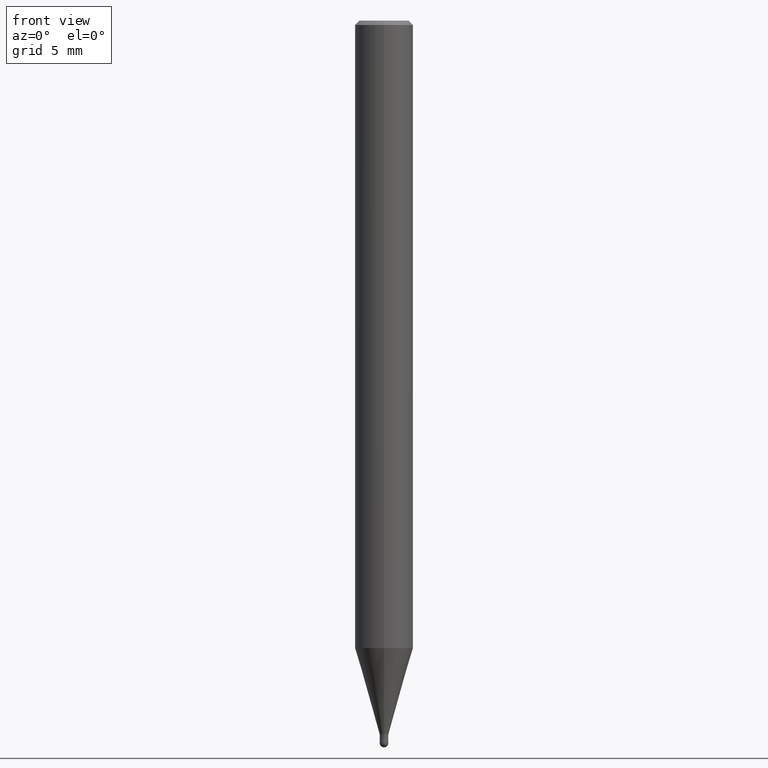
[diagram: clean part render]
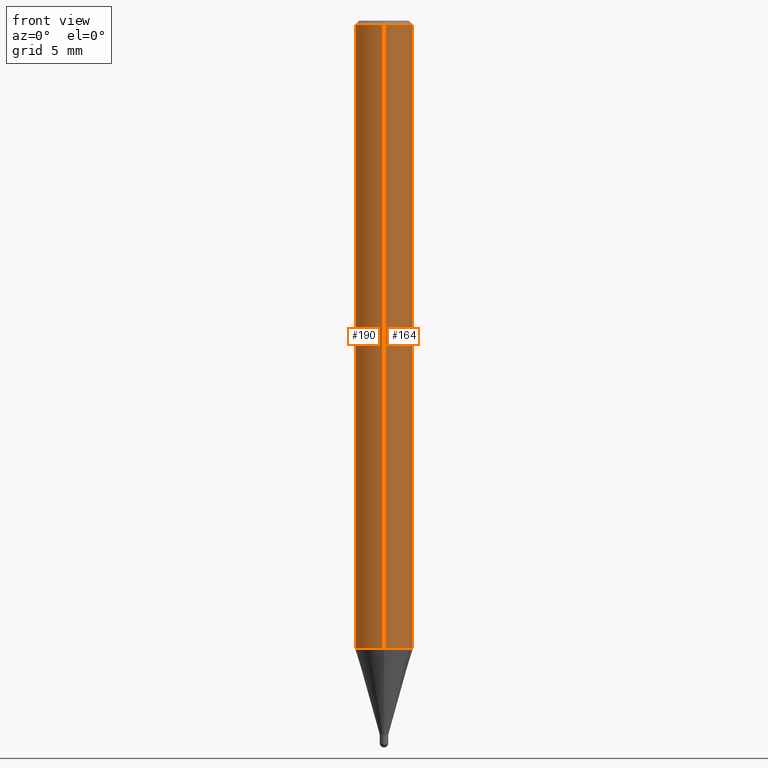
[diagram: same view with one multi-face feature highlighted, each face labeled with its STEP entity id]
A machine part, front view. The highlighted faces form ONE feature: a constant-radius fillet chain: 2 tangent blend faces with common blend radius 2 mm. The faces share edges in the B-rep.
Their STEP definitions:
[1] entity #164 (Cylinder):
#90=EDGE_CURVE('',#124,#100,#218,.T.);
#92=EDGE_CURVE('',#130,#100,#220,.T.);
#100=VERTEX_POINT('',#229);
#112=EDGE_CURVE('',#124,#126,#242,.T.);
#124=VERTEX_POINT('',#254);
#126=VERTEX_POINT('',#256);
#130=VERTEX_POINT('',#260);
#164=ADVANCED_FACE('',(#300),#301,.T.);
#182=EDGE_CURVE('',#126,#130,#321,.T.);
#218=CIRCLE('',#351,2.0);
#220=LINE('',#354,#355);
#229=CARTESIAN_POINT('',(2.44921270764475E-016,-2.0,-0.299999999999997));
#242=LINE('',#378,#379);
#254=CARTESIAN_POINT('',(0.0,2.0,-0.299999999999997));
#256=CARTESIAN_POINT('',(0.0,2.0,-43.171));
#260=CARTESIAN_POINT('',(2.44921270764475E-016,-2.0,-43.171));
#300=FACE_OUTER_BOUND('',#453,.T.);
#301=CYLINDRICAL_SURFACE('',#454,2.0);
#321=CIRCLE('',#480,2.0);
#351=AXIS2_PLACEMENT_3D('',#509,#510,#511);
#354=CARTESIAN_POINT('',(2.44921270764475E-016,-2.0,-21.7355));
#355=VECTOR('',#512,1.0);
#378=CARTESIAN_POINT('',(-2.44921270764475E-016,2.0,-21.7355));
#379=VECTOR('',#531,1.0);
#453=EDGE_LOOP('',(#610,#611,#612,#613));
#454=AXIS2_PLACEMENT_3D('',#614,#615,#616);
#480=AXIS2_PLACEMENT_3D('',#638,#639,#640);
#509=CARTESIAN_POINT('',(0.0,0.0,-0.299999999999997));
#510=DIRECTION('',(0.0,0.0,-1.0));
#511=DIRECTION('',(0.0,1.0,0.0));
#512=DIRECTION('',(-0.0,-0.0,1.0));
#531=DIRECTION('',(0.0,0.0,-1.0));
#610=ORIENTED_EDGE('',*,*,#112,.F.);
#611=ORIENTED_EDGE('',*,*,#90,.T.);
#612=ORIENTED_EDGE('',*,*,#92,.F.);
#613=ORIENTED_EDGE('',*,*,#182,.F.);
#614=CARTESIAN_POINT('',(0.0,0.0,-21.7355));
#615=DIRECTION('',(-0.0,-0.0,1.0));
#616=DIRECTION('',(0.0,1.0,0.0));
#638=CARTESIAN_POINT('',(0.0,0.0,-43.171));
#639=DIRECTION('',(0.0,0.0,-1.0));
#640=DIRECTION('',(0.0,1.0,0.0));
[2] entity #190 (Cylinder):
#92=EDGE_CURVE('',#130,#100,#220,.T.);
#100=VERTEX_POINT('',#229);
#112=EDGE_CURVE('',#124,#126,#242,.T.);
#114=EDGE_CURVE('',#130,#126,#244,.T.);
#124=VERTEX_POINT('',#254);
#126=VERTEX_POINT('',#256);
#128=EDGE_CURVE('',#100,#124,#258,.T.);
#130=VERTEX_POINT('',#260);
#190=ADVANCED_FACE('',(#329),#330,.T.);
#220=LINE('',#354,#355);
#229=CARTESIAN_POINT('',(2.44921270764475E-016,-2.0,-0.299999999999997));
#242=LINE('',#378,#379);
#244=CIRCLE('',#382,2.0);
#254=CARTESIAN_POINT('',(0.0,2.0,-0.299999999999997));
#256=CARTESIAN_POINT('',(0.0,2.0,-43.171));
#258=CIRCLE('',#401,2.0);
#260=CARTESIAN_POINT('',(2.44921270764475E-016,-2.0,-43.171));
#329=FACE_OUTER_BOUND('',#490,.T.);
#330=CYLINDRICAL_SURFACE('',#491,2.0);
#354=CARTESIAN_POINT('',(2.44921270764475E-016,-2.0,-21.7355));
#355=VECTOR('',#512,1.0);
#378=CARTESIAN_POINT('',(-2.44921270764475E-016,2.0,-21.7355));
#379=VECTOR('',#531,1.0);
#382=AXIS2_PLACEMENT_3D('',#532,#533,#534);
#401=AXIS2_PLACEMENT_3D('',#537,#538,#539);
#490=EDGE_LOOP('',(#643,#644,#645,#646));
#491=AXIS2_PLACEMENT_3D('',#647,#648,#649);
#512=DIRECTION('',(-0.0,-0.0,1.0));
#531=DIRECTION('',(0.0,0.0,-1.0));
#532=CARTESIAN_POINT('',(0.0,0.0,-43.171));
#533=DIRECTION('',(0.0,0.0,-1.0));
#534=DIRECTION('',(0.0,1.0,0.0));
#537=CARTESIAN_POINT('',(0.0,0.0,-0.299999999999997));
#538=DIRECTION('',(0.0,0.0,-1.0));
#539=DIRECTION('',(0.0,1.0,0.0));
#643=ORIENTED_EDGE('',*,*,#112,.T.);
#644=ORIENTED_EDGE('',*,*,#114,.F.);
#645=ORIENTED_EDGE('',*,*,#92,.T.);
#646=ORIENTED_EDGE('',*,*,#128,.T.);
#647=CARTESIAN_POINT('',(0.0,0.0,-21.7355));
#648=DIRECTION('',(-0.0,-0.0,1.0));
#649=DIRECTION('',(0.0,1.0,0.0));